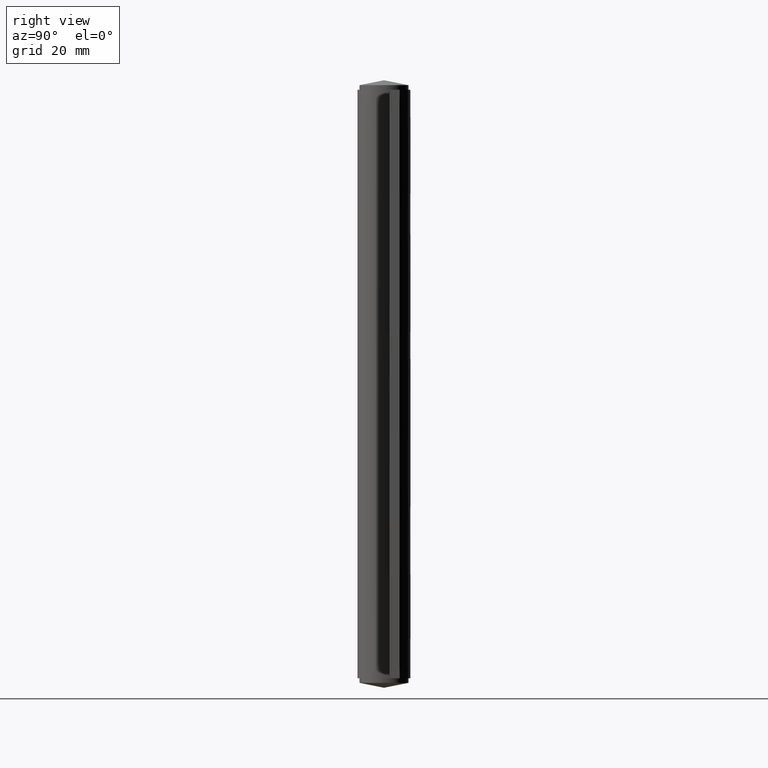
[diagram: clean part render]
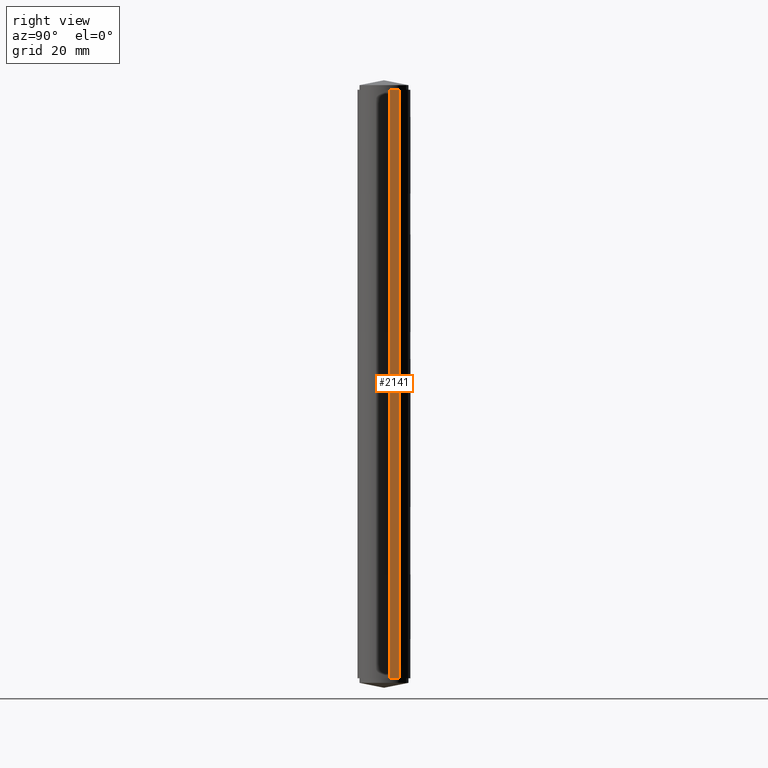
[diagram: same view with one face highlighted and labeled with its STEP entity id]
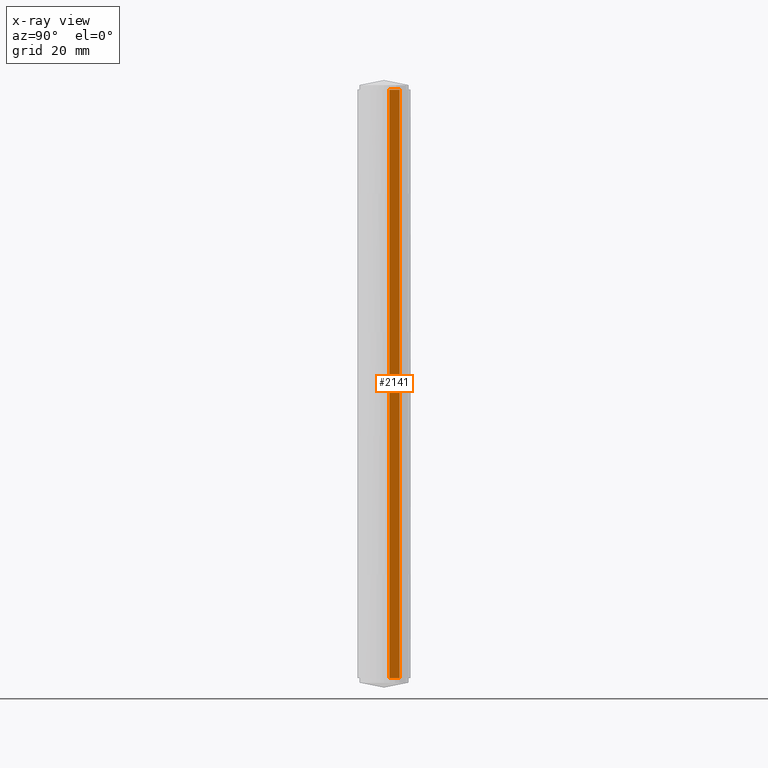
[diagram: x-ray of the same camera — body ghosted, the highlighted face saturated]
A machine part, right view. The second image highlights one B-rep face of the part: STEP entity #2141.
The next image is the same camera in x-ray: the body ghosted, the highlighted face saturated — about 0% of this face is hidden behind the body in this view.
In plain terms, the highlighted face is a freeform B-spline surface patch.
Its self-contained STEP definition (entity closure, byte-faithful):
#1627=CARTESIAN_POINT('',(35.0,0.900000000000034,0.0));
#1628=VERTEX_POINT('',#1627);
#1634=CARTESIAN_POINT('',(35.0,0.900000000000034,102.000015000000000));
#1635=VERTEX_POINT('',#1634);
#1636=CARTESIAN_POINT('',(35.0,0.900000000000034,102.000015000000000));
#1637=CARTESIAN_POINT('',(35.0,0.900000000000034,0.0));
#1638=QUASI_UNIFORM_CURVE('',1,(#1636,#1637),.UNSPECIFIED.,.F.,.U.);
#1639=EDGE_CURVE('',#1635,#1628,#1638,.T.);
#2038=CARTESIAN_POINT('',(35.0,2.699999000000000,0.0));
#2039=VERTEX_POINT('',#2038);
#2045=CARTESIAN_POINT('',(35.0,2.699999000000000,0.0));
#2046=CARTESIAN_POINT('',(35.0,0.900000000000034,0.0));
#2047=QUASI_UNIFORM_CURVE('',1,(#2045,#2046),.UNSPECIFIED.,.F.,.U.);
#2048=EDGE_CURVE('',#2039,#1628,#2047,.T.);
#2111=CARTESIAN_POINT('',(35.0,2.699999000000000,102.000015000000000));
#2112=VERTEX_POINT('',#2111);
#2113=CARTESIAN_POINT('',(35.0,2.699999000000000,102.000015000000000));
#2114=CARTESIAN_POINT('',(35.0,0.900000000000034,102.000015000000000));
#2115=QUASI_UNIFORM_CURVE('',1,(#2113,#2114),.UNSPECIFIED.,.F.,.U.);
#2116=EDGE_CURVE('',#2112,#1635,#2115,.T.);
#2126=CARTESIAN_POINT('',(35.0,0.810090053438783,107.094915551554190));
#2127=CARTESIAN_POINT('',(35.0,0.810090053438783,-5.094903287407774));
#2128=CARTESIAN_POINT('',(35.0,2.789908994840987,107.094915551554190));
#2129=CARTESIAN_POINT('',(35.0,2.789908994840987,-5.094903287407774));
#2130=B_SPLINE_SURFACE_WITH_KNOTS('',1,1,((#2126,#2128),(#2127,#2129)),.UNSPECIFIED.,.F.,.F.,.U.,(2,2),(2,2),(0.0,112.189818838962000),(0.0,1.979818941402204),.UNSPECIFIED.);
#2131=ORIENTED_EDGE('',*,*,#2048,.F.);
#2132=CARTESIAN_POINT('',(35.0,2.699999000000000,102.000015000000000));
#2133=CARTESIAN_POINT('',(35.0,2.699999000000000,0.0));
#2134=QUASI_UNIFORM_CURVE('',1,(#2132,#2133),.UNSPECIFIED.,.F.,.U.);
#2135=EDGE_CURVE('',#2112,#2039,#2134,.T.);
#2136=ORIENTED_EDGE('',*,*,#2135,.F.);
#2137=ORIENTED_EDGE('',*,*,#2116,.T.);
#2138=ORIENTED_EDGE('',*,*,#1639,.T.);
#2139=EDGE_LOOP('',(#2131,#2136,#2137,#2138));
#2140=FACE_OUTER_BOUND('',#2139,.T.);
#2141=ADVANCED_FACE('',(#2140),#2130,.T.);